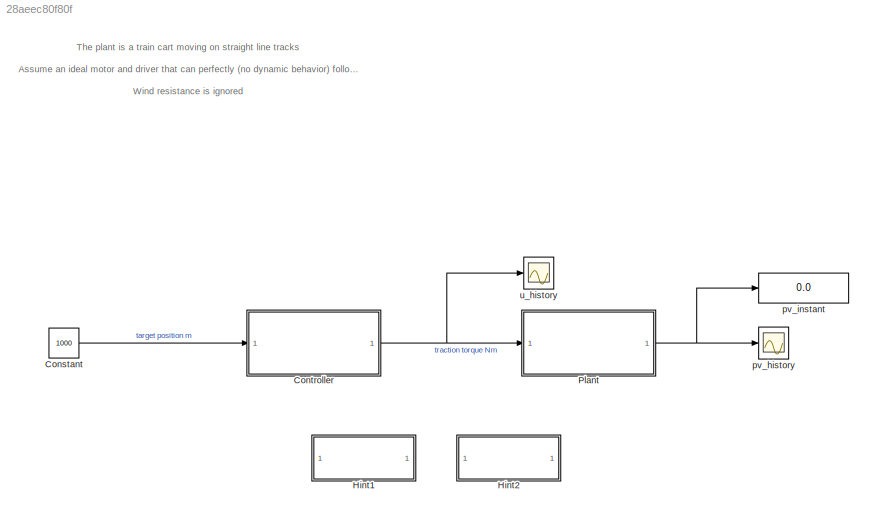
MODEL slx_28aeec80f80f
KIND model
CONFIG AbsTol = auto
CONFIG EnableMultiTasking = off
CONFIG FixedStep = auto
CONFIG MaxStep = auto
CONFIG MinStep = auto
CONFIG RelTol = 1e-3
CONFIG SampleTimeConstraint = Unconstrained
CONFIG SolverName = VariableStepAuto
CONFIG StartTime = 0.0
CONFIG StopTime = 600
BLOCK [Constant] Constant
  Value = 1000
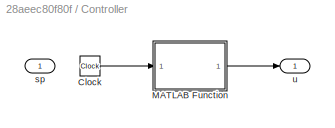
BLOCK [SubSystem] Controller
BLOCK [Clock] Controller/Clock
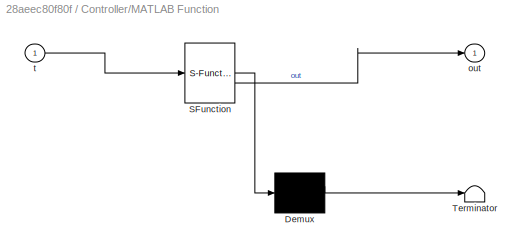
BLOCK [SubSystem] Controller/MATLAB Function
  ErrorFcn = Stateflow.Translate.translate
  PermitHierarchicalResolution = ExplicitOnly
  SFBlockType = MATLAB Function
  TreatAsAtomicUnit = on
BLOCK [Demux] Controller/MATLAB Function/ Demux 
  Outputs = 1
BLOCK [S-Function] Controller/MATLAB Function/ SFunction 
  EnableBusSupport = on
  FunctionName = sf_sfun
  PortCounts = [1 2]
  SFcnIsStateOwnerBlock = off
  SFunctionDeploymentMode = off
  Tag = Stateflow S-Function 1
BLOCK [Terminator] Controller/MATLAB Function/ Terminator 
BLOCK [Outport] Controller/MATLAB Function/out
BLOCK [Inport] Controller/MATLAB Function/t
BLOCK [Inport] Controller/sp
BLOCK [Outport] Controller/u
BLOCK [SubSystem] Hint1
BLOCK [SubSystem] Hint2
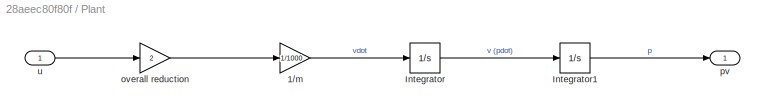
BLOCK [SubSystem] Plant
BLOCK [Gain] Plant/1//m
  Gain = 1/1000
BLOCK [Integrator] Plant/Integrator
BLOCK [Integrator] Plant/Integrator1
BLOCK [Gain] Plant/overall reduction
  Gain = 2
BLOCK [Outport] Plant/pv
BLOCK [Inport] Plant/u
BLOCK [Scope] pv_history
  Floating = off
  NameLocation = right
  NumInputPorts = 1
  ScopeSpecificationString = Simulink.scopes.TimeScopeBlockCfg('CurrentConfiguration', extmgr.ConfigurationSet(extmgr.Configuration('Core','General UI',true),extmgr.Configuration('Core','Source UI',true),extmgr.Configuration('Sources','WiredSimulink',true),extmgr.Configuration('Visuals','Time Domain',true,'SerializedDisplays',{struct('MinYLimReal','-160.10123','MaxYLimReal','1440.9111','YLabelReal','','MinYLimMag',' 0.00000',...<+1439ch>
BLOCK [Display] pv_instant
  Decimation = 1
  NameLocation = right
BLOCK [Scope] u_history
  Floating = off
  NameLocation = right
  NumInputPorts = 1
  ScopeSpecificationString = Simulink.scopes.TimeScopeBlockCfg('CurrentConfiguration', extmgr.ConfigurationSet(extmgr.Configuration('Core','General UI',true),extmgr.Configuration('Core','Source UI',true),extmgr.Configuration('Sources','WiredSimulink',true,'DataLoggingVariableName','ScopeData1'),extmgr.Configuration('Visuals','Time Domain',true,'SerializedDisplays',{struct('MinYLimReal','-202.5625','MaxYLimReal','578.0625','YL...<+1414ch>
ANNOTATION (root): The plant is a train cart moving on straight line tracks Assume an ideal motor and driver that can perfectly (no dynamic behavior) follow torque commands from your controller Wind resistance is ignored Make it reach a specified position You can only modify the controller block between its input and output ports not the number of ports or what these are connected to to. Feedback is disabled on purp...<+63ch>
ANNOTATION Hint1: A constant torque is no longer a solution. You need to decelarate and stop. Since air drag reduces as you slow down, you need to actively brake (or apply negative torque) at some point. Without feedback, the real problem is finding out when to and how hard to do so. Note that braking and negative torque are not the same thing. You will not go backwards when you brake. With negative torque, you wil...<+56ch>
ANNOTATION Hint2: This has become a double integrating system. Any velocity error will grow unbounded with time. You definitely want to use a predictor. That is, make your own model predicting velocity and poisition to take pseudo-feedback in order to reduce trial and error misery.
LINE Constant:1 -> Controller:1
LINE Controller/Clock:1 -> Controller/MATLAB Function:1
LINE Controller/MATLAB Function:1 -> Controller/u:1
NET Controller:1 -> Plant:1, u_history:1
LINE Plant/1//m:1 -> Plant/Integrator:1
LINE Plant/Integrator1:1 -> Plant/pv:1
LINE Plant/Integrator:1 -> Plant/Integrator1:1
LINE Plant/overall reduction:1 -> Plant/1//m:1
LINE Plant/u:1 -> Plant/overall reduction:1
NET Plant:1 -> pv_history:1, pv_instant:1
note: NET lines group one-source signal fan-out (src -> all destinations, sorted); 1:1 wires keep LINE
CHART Controller/MATLAB Function states=1 transitions=1
  STATE_LABEL 'eML_blk_kernel()'
  STATE_LABEL 'SCRIPT:\nfunction out = fcn(t)\nif t < 25\n    out = 500;\nelseif t < 100\n    out = -124.5;\nelse\n    out = 0;\nend\n'
CHART  states=0 transitions=0
